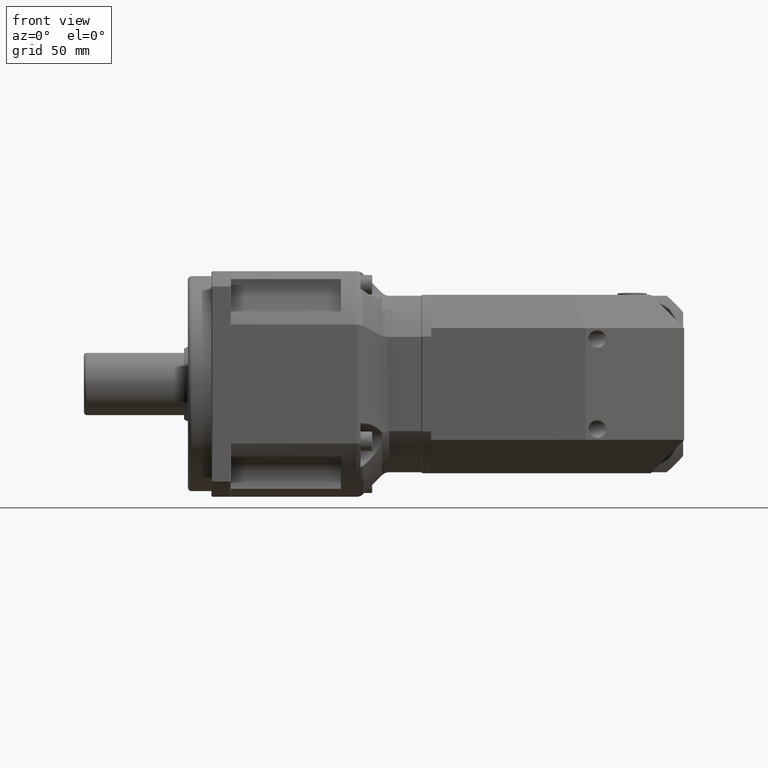
[diagram: clean part render]
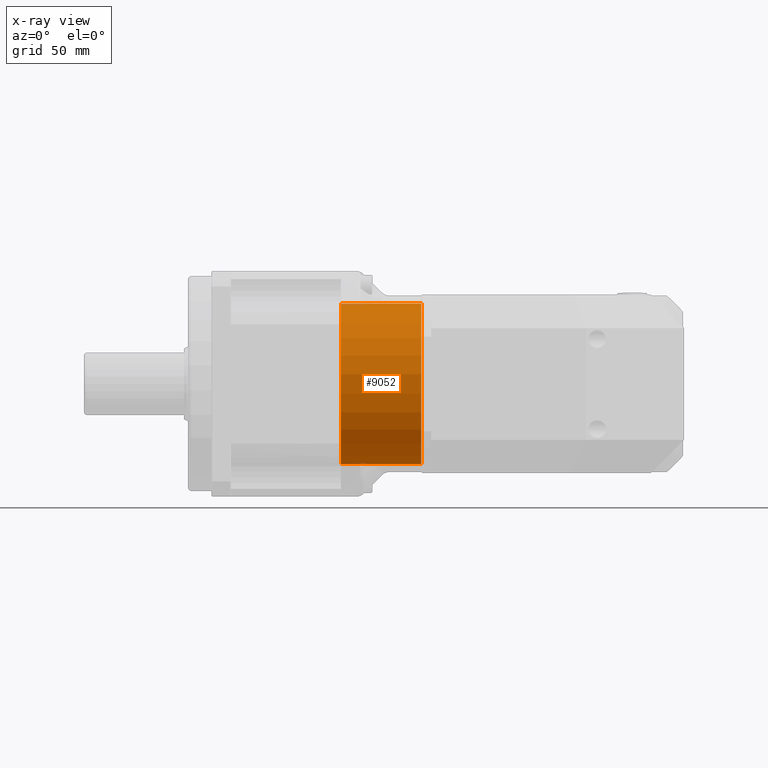
[diagram: x-ray — body ghosted, one internal face saturated and labeled with its STEP entity id]
A machine part, front view, then the same camera in x-ray: the body is ghosted and one INTERNAL B-rep face — a face not visible from any outside direction — is saturated and labeled: STEP entity #9052.
In plain terms, the highlighted cylindrical surface (bore or boss wall) has radius 41 mm, axis along (-1, -0, 0).
Its self-contained STEP definition (entity closure, byte-faithful):
#2003=FACE_BOUND('',#3503,.T.);
#2165=CYLINDRICAL_SURFACE('',#10019,41.);
#2694=FACE_OUTER_BOUND('',#3502,.T.);
#3502=EDGE_LOOP('',(#7883));
#3503=EDGE_LOOP('',(#7884));
#3937=CIRCLE('',#10020,41.);
#3938=CIRCLE('',#10021,41.);
#4695=VERTEX_POINT('',#15995);
#4696=VERTEX_POINT('',#15997);
#5780=EDGE_CURVE('',#4695,#4695,#3937,.T.);
#5781=EDGE_CURVE('',#4696,#4696,#3938,.T.);
#7883=ORIENTED_EDGE('',*,*,#5780,.F.);
#7884=ORIENTED_EDGE('',*,*,#5781,.F.);
#9052=ADVANCED_FACE('',(#2694,#2003),#2165,.F.);
#10019=AXIS2_PLACEMENT_3D('',#15994,#12266,#12267);
#10020=AXIS2_PLACEMENT_3D('',#15996,#12268,#12269);
#10021=AXIS2_PLACEMENT_3D('',#15998,#12270,#12271);
#12266=DIRECTION('center_axis',(-1.,-7.30465753510197E-16,7.28688222839997E-17));
#12267=DIRECTION('ref_axis',(7.28688222840003E-17,-8.02309607639273E-16,
1.));
#12268=DIRECTION('center_axis',(1.,7.30465753510197E-16,-7.28688222839997E-17));
#12269=DIRECTION('ref_axis',(7.28688222840003E-17,-8.02309607639273E-16,
1.));
#12270=DIRECTION('center_axis',(-1.,-7.30465753510197E-16,7.28688222839997E-17));
#12271=DIRECTION('ref_axis',(7.28688222840003E-17,-8.02309607639273E-16,
1.));
#15994=CARTESIAN_POINT('Origin',(-12.3145634856386,36.0608220023815,78.375721489125));
#15995=CARTESIAN_POINT('',(-53.3145634856385,36.0608220023815,37.375721489125));
#15996=CARTESIAN_POINT('Origin',(-53.3145634856385,36.0608220023815,78.375721489125));
#15997=CARTESIAN_POINT('',(-12.3145634856386,36.0608220023815,37.375721489125));
#15998=CARTESIAN_POINT('Origin',(-12.3145634856386,36.0608220023815,78.375721489125));